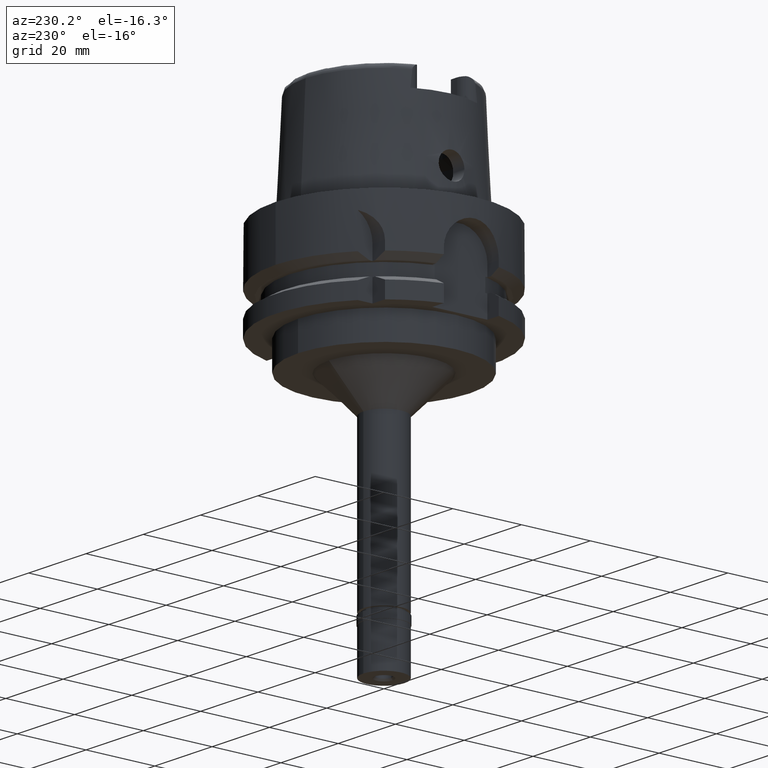
[diagram: clean part render]
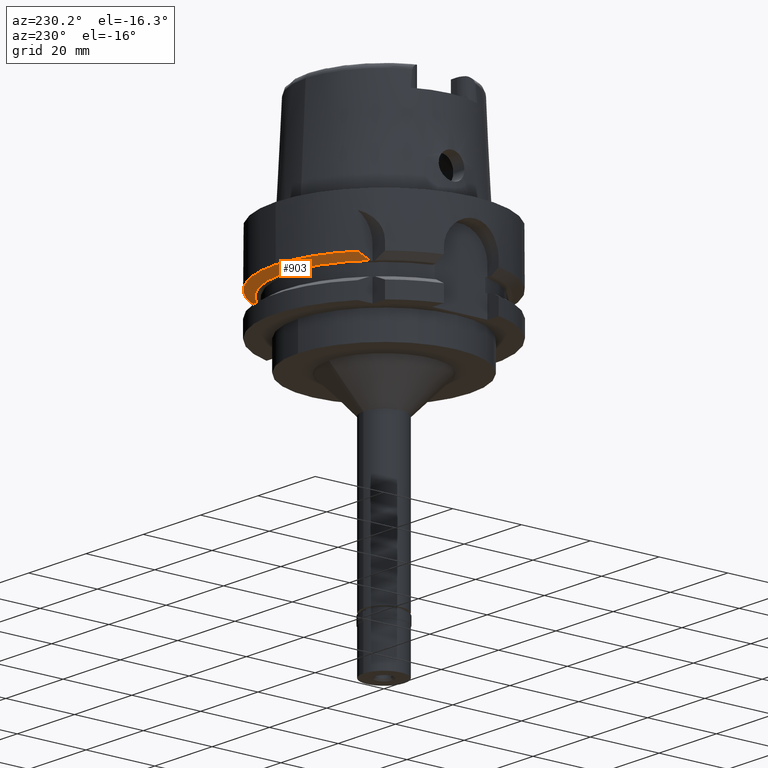
[diagram: same view with one face highlighted and labeled with its STEP entity id]
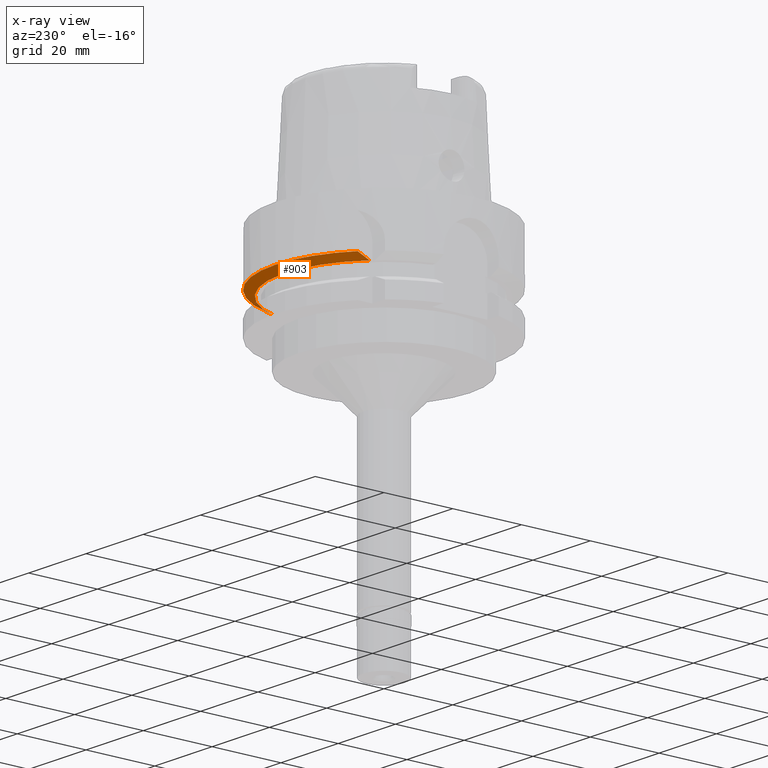
[diagram: x-ray of the same camera — body ghosted, the highlighted face saturated]
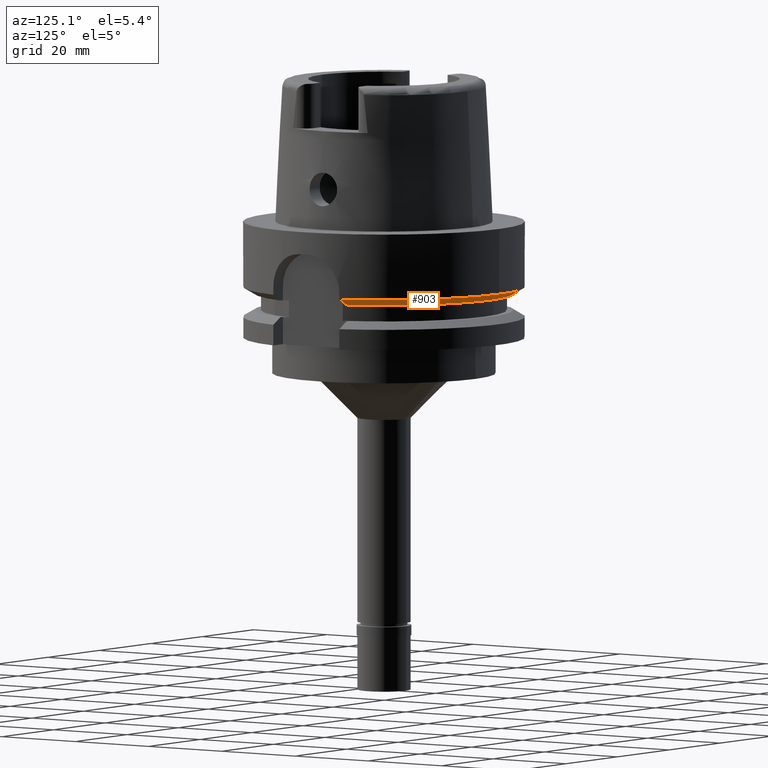
[diagram: same view with one face highlighted and labeled with its STEP entity id]
A machine part, auxiliary view. The second image highlights one B-rep face of the part: STEP entity #903.
The next image is the same camera in x-ray: the body ghosted, the highlighted face saturated — about 2% of this face is hidden behind the body in this view.
A second angle (auxiliary view) of the same face is appended — the face is thin or edge-on in the first view.
In plain terms, the highlighted conical surface has half-angle 60 deg.
Its self-contained STEP definition (entity closure, byte-faithful):
#86 = EDGE_CURVE ( 'NONE', #267, #2680, #4264, .T. ) ;
#131 = DIRECTION ( 'NONE',  ( 0.0000000000000000000, 1.000000000000000000, 0.0000000000000000000 ) ) ;
#161 = CARTESIAN_POINT ( 'NONE',  ( -20.00000400335999728, 20.85831984813000162, -16.12500000000000000 ) ) ;
#210 = CIRCLE ( 'NONE', #1697, 28.89759526419000224 ) ;
#267 = VERTEX_POINT ( 'NONE', #4114 ) ;
#418 = CARTESIAN_POINT ( 'NONE',  ( 29.87646187916000073, 9.000000692495998322, -14.79426525216000066 ) ) ;
#604 = CARTESIAN_POINT ( 'NONE',  ( 0.0000000000000000000, 0.0000000000000000000, -15.37375046262000033 ) ) ;
#697 = DIRECTION ( 'NONE',  ( 0.0000000000000000000, 0.0000000000000000000, 1.000000000000000000 ) ) ;
#713 = CIRCLE ( 'NONE', #3857, 31.49999999999999645 ) ;
#759 = VERTEX_POINT ( 'NONE', #2984 ) ;
#803 = CARTESIAN_POINT ( 'NONE',  ( 30.18691748978999811, 9.000000692495998322, -14.62249534000999951 ) ) ;
#830 = CARTESIAN_POINT ( 'NONE',  ( 27.75581574005000007, 9.000000214624998662, -15.96289731537000200 ) ) ;
#903 = ADVANCED_FACE ( 'NONE', ( #5248 ), #4492, .T. ) ;
#971 = DIRECTION ( 'NONE',  ( 0.0000000000000000000, 0.0000000000000000000, 1.000000000000000000 ) ) ;
#1016 = AXIS2_PLACEMENT_3D ( 'NONE', #4852, #4358, #2660 ) ;
#1068 = CARTESIAN_POINT ( 'NONE',  ( 0.0000000000000000000, 0.0000000000000000000, -14.62250092523999889 ) ) ;
#1137 = ORIENTED_EDGE ( 'NONE', *, *, #3889, .T. ) ;
#1335 = AXIS2_PLACEMENT_3D ( 'NONE', #604, #971, #1457 ) ;
#1397 = B_SPLINE_CURVE_WITH_KNOTS ( 'NONE', 3,
 ( #161, #3945, #3514, #1451 ),
 .UNSPECIFIED., .F., .F.,
 ( 4, 4 ),
 ( 0.0000000000000000000, 1.000000000000000000 ),
 .UNSPECIFIED. ) ;
#1451 = CARTESIAN_POINT ( 'NONE',  ( -20.00001377493000021, 24.33617572673000140, -14.62245154170999939 ) ) ;
#1457 = DIRECTION ( 'NONE',  ( 0.0000000000000000000, 1.000000000000000000, 0.0000000000000000000 ) ) ;
#1525 = CARTESIAN_POINT ( 'NONE',  ( 30.18691748978999811, 9.000000692495998322, -14.62249534000999951 ) ) ;
#1527 = EDGE_CURVE ( 'NONE', #759, #4566, #210, .T. ) ;
#1697 = AXIS2_PLACEMENT_3D ( 'NONE', #4702, #4234, #131 ) ;
#2056 = EDGE_LOOP ( 'NONE', ( #2259, #5263, #3328, #3508, #1137 ) ) ;
#2259 = ORIENTED_EDGE ( 'NONE', *, *, #86, .F. ) ;
#2382 = DIRECTION ( 'NONE',  ( 0.9583148474999051425, 0.2857142857143015191, 0.0000000000000000000 ) ) ;
#2473 = CARTESIAN_POINT ( 'NONE',  ( 29.26057104611000170, 8.999999705451999787, -15.13460388853000005 ) ) ;
#2597 = CARTESIAN_POINT ( 'NONE',  ( -20.00000400335999728, 20.85831984813000162, -16.12500000000000000 ) ) ;
#2660 = DIRECTION ( 'NONE',  ( 0.0000000000000000000, 1.000000000000000000, 0.0000000000000000000 ) ) ;
#2680 = VERTEX_POINT ( 'NONE', #4722 ) ;
#2984 = CARTESIAN_POINT ( 'NONE',  ( 27.46035048403000189, 9.000000214624998662, -16.12500000000000000 ) ) ;
#3328 = ORIENTED_EDGE ( 'NONE', *, *, #4222, .F. ) ;
#3475 = CARTESIAN_POINT ( 'NONE',  ( 28.35172407702999919, 8.999999992174000596, -15.63545508016999896 ) ) ;
#3508 = ORIENTED_EDGE ( 'NONE', *, *, #1527, .T. ) ;
#3514 = CARTESIAN_POINT ( 'NONE',  ( -20.00002748883304093, 23.13591286296415817, -15.15787019954225556 ) ) ;
#3857 = AXIS2_PLACEMENT_3D ( 'NONE', #1068, #697, #2382 ) ;
#3889 = EDGE_CURVE ( 'NONE', #4566, #2680, #1397, .T. ) ;
#3945 = CARTESIAN_POINT ( 'NONE',  ( -20.00000808210187841, 21.97726579126707236, -15.65871069883595368 ) ) ;
#4003 = EDGE_CURVE ( 'NONE', #4091, #267, #713, .T. ) ;
#4091 = VERTEX_POINT ( 'NONE', #1525 ) ;
#4114 = CARTESIAN_POINT ( 'NONE',  ( 0.0000000000000000000, 31.50000000000000000, -14.62250092523999889 ) ) ;
#4222 = EDGE_CURVE ( 'NONE', #759, #4091, #4741, .T. ) ;
#4234 = DIRECTION ( 'NONE',  ( 0.0000000000000000000, 0.0000000000000000000, 1.000000000000000000 ) ) ;
#4264 = CIRCLE ( 'NONE', #1016, 31.50000000000000000 ) ;
#4358 = DIRECTION ( 'NONE',  ( 0.0000000000000000000, 0.0000000000000000000, 1.000000000000000000 ) ) ;
#4492 = CONICAL_SURFACE ( 'NONE', #1335, 30.19879763209999979, 1.047197551196400456 ) ;
#4558 = CARTESIAN_POINT ( 'NONE',  ( 27.46035048403000189, 9.000000214624998662, -16.12500000000000000 ) ) ;
#4566 = VERTEX_POINT ( 'NONE', #2597 ) ;
#4702 = CARTESIAN_POINT ( 'NONE',  ( 0.0000000000000000000, 0.0000000000000000000, -16.12500000000000000 ) ) ;
#4722 = CARTESIAN_POINT ( 'NONE',  ( -20.00001377493000021, 24.33617572673000140, -14.62245154170999939 ) ) ;
#4741 = B_SPLINE_CURVE_WITH_KNOTS ( 'NONE', 3,
 ( #4558, #830, #3475, #2473, #418, #803 ),
 .UNSPECIFIED., .F., .F.,
 ( 4, 1, 1, 4 ),
 ( 0.0000000000000000000, 0.3333333333333000081, 0.6666666666667000474, 1.000000000000000000 ),
 .UNSPECIFIED. ) ;
#4852 = CARTESIAN_POINT ( 'NONE',  ( 0.0000000000000000000, 0.0000000000000000000, -14.62250092523999889 ) ) ;
#5248 = FACE_OUTER_BOUND ( 'NONE', #2056, .T. ) ;
#5263 = ORIENTED_EDGE ( 'NONE', *, *, #4003, .F. ) ;